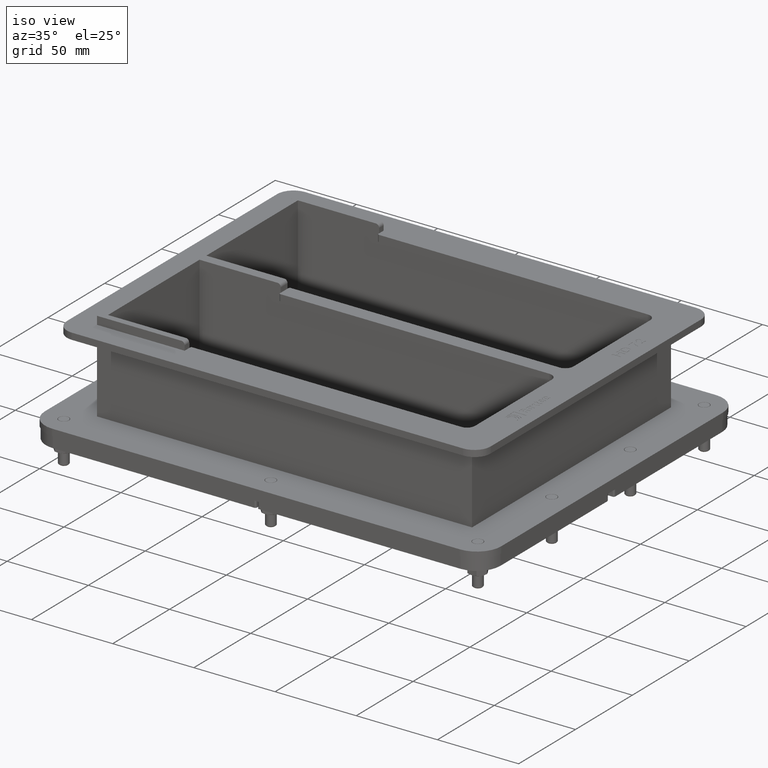
[diagram: clean part render]
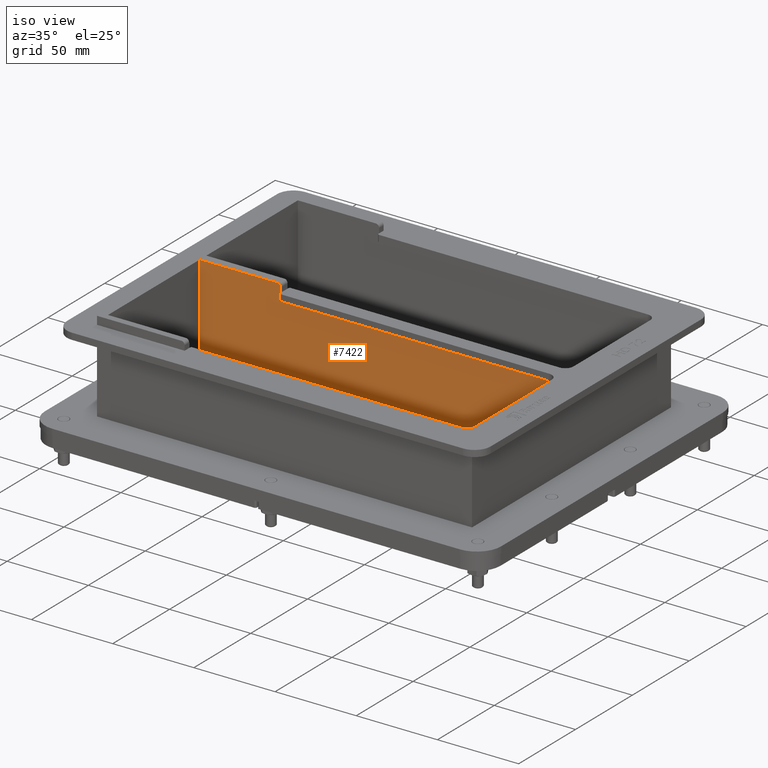
[diagram: same view with one face highlighted and labeled with its STEP entity id]
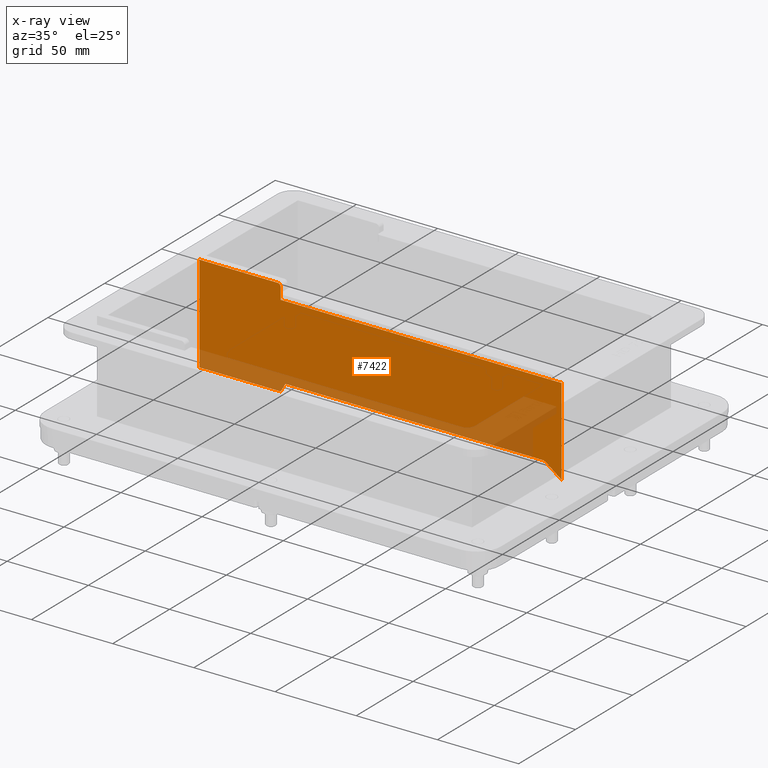
[diagram: x-ray of the same camera — body ghosted, the highlighted face saturated]
A machine part, iso view. The second image highlights one B-rep face of the part: STEP entity #7422.
The next image is the same camera in x-ray: the body ghosted, the highlighted face saturated — about 19% of this face is hidden behind the body in this view.
In plain terms, the highlighted planar face has unit normal (-0, -1, 0).
Its self-contained STEP definition (entity closure, byte-faithful):
#599=PLANE('',#8288);
#931=FACE_OUTER_BOUND('',#1390,.T.);
#1390=EDGE_LOOP('',(#5880,#5881,#5882,#5883,#5884,#5885,#5886,#5887,#5888,
#5889,#5890));
#1868=LINE('',#11544,#2585);
#1872=LINE('',#11552,#2589);
#1874=LINE('',#11556,#2591);
#1875=LINE('',#11558,#2592);
#1876=LINE('',#11560,#2593);
#1877=LINE('',#11562,#2594);
#1878=LINE('',#11566,#2595);
#1879=LINE('',#11568,#2596);
#1880=LINE('',#11569,#2597);
#2585=VECTOR('',#9409,10.);
#2589=VECTOR('',#9415,10.);
#2591=VECTOR('',#9419,10.);
#2592=VECTOR('',#9420,10.);
#2593=VECTOR('',#9421,10.);
#2594=VECTOR('',#9422,10.);
#2595=VECTOR('',#9425,10.);
#2596=VECTOR('',#9426,10.);
#2597=VECTOR('',#9427,10.);
#3247=CIRCLE('',#8284,5.);
#3249=CIRCLE('',#8289,2.);
#3556=VERTEX_POINT('',#11534);
#3557=VERTEX_POINT('',#11535);
#3560=VERTEX_POINT('',#11543);
#3563=VERTEX_POINT('',#11551);
#3564=VERTEX_POINT('',#11555);
#3565=VERTEX_POINT('',#11557);
#3566=VERTEX_POINT('',#11559);
#3567=VERTEX_POINT('',#11561);
#3568=VERTEX_POINT('',#11563);
#3569=VERTEX_POINT('',#11565);
#3570=VERTEX_POINT('',#11567);
#4400=EDGE_CURVE('',#3556,#3557,#3247,.T.);
#4404=EDGE_CURVE('',#3560,#3557,#1868,.T.);
#4408=EDGE_CURVE('',#3563,#3560,#1872,.T.);
#4410=EDGE_CURVE('',#3556,#3564,#1874,.T.);
#4411=EDGE_CURVE('',#3565,#3564,#1875,.F.);
#4412=EDGE_CURVE('',#3565,#3566,#1876,.T.);
#4413=EDGE_CURVE('',#3566,#3567,#1877,.T.);
#4414=EDGE_CURVE('',#3568,#3567,#3249,.T.);
#4415=EDGE_CURVE('',#3568,#3569,#1878,.F.);
#4416=EDGE_CURVE('',#3569,#3570,#1879,.F.);
#4417=EDGE_CURVE('',#3563,#3570,#1880,.T.);
#5880=ORIENTED_EDGE('',*,*,#4408,.T.);
#5881=ORIENTED_EDGE('',*,*,#4404,.T.);
#5882=ORIENTED_EDGE('',*,*,#4400,.F.);
#5883=ORIENTED_EDGE('',*,*,#4410,.T.);
#5884=ORIENTED_EDGE('',*,*,#4411,.F.);
#5885=ORIENTED_EDGE('',*,*,#4412,.T.);
#5886=ORIENTED_EDGE('',*,*,#4413,.T.);
#5887=ORIENTED_EDGE('',*,*,#4414,.F.);
#5888=ORIENTED_EDGE('',*,*,#4415,.T.);
#5889=ORIENTED_EDGE('',*,*,#4416,.T.);
#5890=ORIENTED_EDGE('',*,*,#4417,.F.);
#7422=ADVANCED_FACE('',(#931),#599,.T.);
#8284=AXIS2_PLACEMENT_3D('',#11536,#9401,#9402);
#8288=AXIS2_PLACEMENT_3D('',#11554,#9417,#9418);
#8289=AXIS2_PLACEMENT_3D('',#11564,#9423,#9424);
#9401=DIRECTION('center_axis',(0.,0.,-1.));
#9402=DIRECTION('ref_axis',(-0.316227766016839,0.948683298050513,0.));
#9409=DIRECTION('',(-1.,2.78519115502393E-17,0.));
#9415=DIRECTION('',(-0.500000000000001,0.866025403784438,0.));
#9417=DIRECTION('center_axis',(0.,0.,-1.));
#9418=DIRECTION('ref_axis',(-1.,0.,0.));
#9419=DIRECTION('',(-0.8,-0.6,0.));
#9420=DIRECTION('',(0.,1.,0.));
#9421=DIRECTION('',(1.,-4.80740671595893E-16,0.));
#9422=DIRECTION('',(0.,1.,0.));
#9423=DIRECTION('center_axis',(0.,0.,1.));
#9424=DIRECTION('ref_axis',(-0.707106781186549,0.707106781186546,0.));
#9425=DIRECTION('',(-1.,-5.69345140833414E-17,0.));
#9426=DIRECTION('',(0.,1.,0.));
#9427=DIRECTION('',(1.,0.,0.));
#11534=CARTESIAN_POINT('',(-98.9166666666667,-27.,-3.));
#11535=CARTESIAN_POINT('',(-95.9166666666667,-26.,-3.));
#11536=CARTESIAN_POINT('Origin',(-95.9166666666667,-31.,-3.));
#11543=CARTESIAN_POINT('',(61.8632486540519,-26.,-3.));
#11544=CARTESIAN_POINT('',(32.8322101320718,-26.,-3.));
#11551=CARTESIAN_POINT('',(64.75,-31.,-3.));
#11552=CARTESIAN_POINT('',(50.8477258393986,-6.92055481308646,-3.));
#11554=CARTESIAN_POINT('Origin',(3.80117161009168,-1.97696864593649,-3.));
#11555=CARTESIAN_POINT('',(-108.25,-34.,-3.));
#11556=CARTESIAN_POINT('',(-59.3747642264621,2.65642683015347,-3.));
#11557=CARTESIAN_POINT('',(-108.25,20.0000000000001,-3.));
#11558=CARTESIAN_POINT('',(-108.25,-2.48848432296825,-3.));
#11559=CARTESIAN_POINT('',(64.75,20.,-3.));
#11560=CARTESIAN_POINT('',(31.0911847282873,20.,-3.));
#11561=CARTESIAN_POINT('',(64.75,27.,-3.));
#11562=CARTESIAN_POINT('',(64.75,9.01151567703175,-3.));
#11563=CARTESIAN_POINT('',(66.75,29.,-3.));
#11564=CARTESIAN_POINT('Origin',(66.75,27.,-3.));
#11565=CARTESIAN_POINT('',(114.75,29.,-3.));
#11566=CARTESIAN_POINT('',(60.4005858050458,29.,-3.));
#11567=CARTESIAN_POINT('',(114.75,-31.,-3.));
#11568=CARTESIAN_POINT('',(114.75,-15.9884843229682,-3.));
#11569=CARTESIAN_POINT('',(20.1875,-31.,-3.));